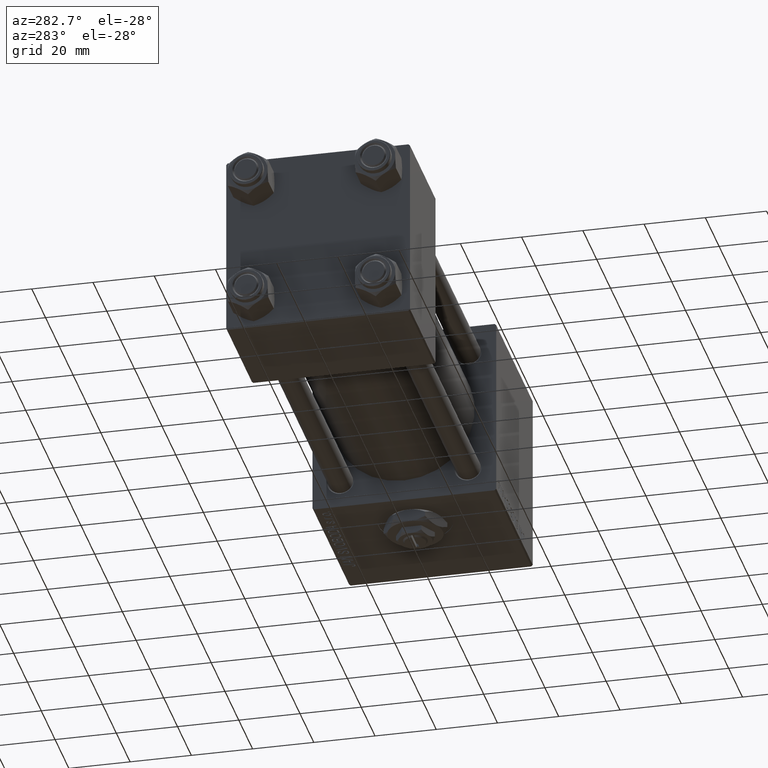
[diagram: clean part render]
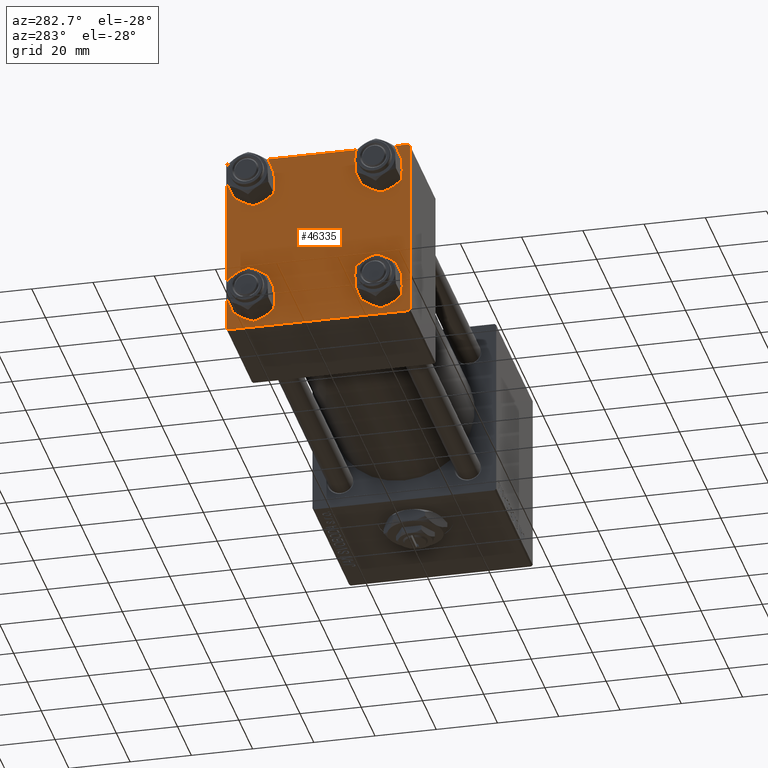
[diagram: same view with one face highlighted and labeled with its STEP entity id]
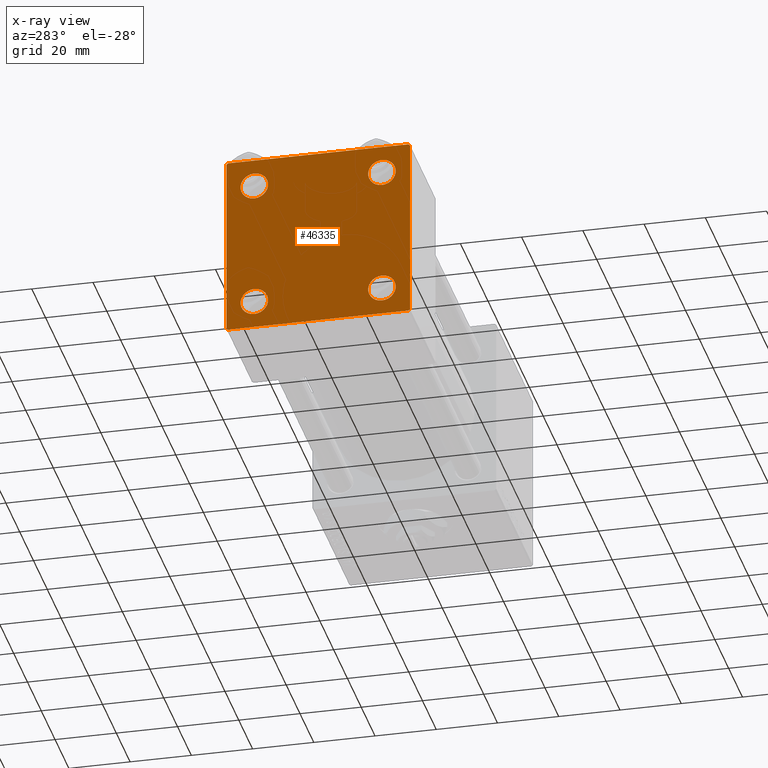
[diagram: x-ray of the same camera — body ghosted, the highlighted face saturated]
A machine part, auxiliary view. The second image highlights one B-rep face of the part: STEP entity #46335.
The next image is the same camera in x-ray: the body ghosted, the highlighted face saturated — about 0% of this face is hidden behind the body in this view.
In plain terms, the highlighted planar face has unit normal (-1, 0, 0).
Its self-contained STEP definition (entity closure, byte-faithful):
#37 = CIRCLE ( 'NONE', #29368, 4.500000000000017764 ) ;
#417 = DIRECTION ( 'NONE',  ( 0.000000000000000000, -0.7071067811865474617, 0.7071067811865474617 ) ) ;
#1184 = VERTEX_POINT ( 'NONE', #28170 ) ;
#1588 = CIRCLE ( 'NONE', #16697, 4.500000000000017764 ) ;
#1604 = EDGE_CURVE ( 'NONE', #35643, #50467, #30187, .T. ) ;
#1827 = VERTEX_POINT ( 'NONE', #10423 ) ;
#2839 = ORIENTED_EDGE ( 'NONE', *, *, #21940, .F. ) ;
#2857 = LINE ( 'NONE', #50364, #40828 ) ;
#3100 = DIRECTION ( 'NONE',  ( -0.000000000000000000, 0.000000000000000000, 1.000000000000000000 ) ) ;
#3378 = CARTESIAN_POINT ( 'NONE',  ( 0.000000000000000000, 20.84999999999999787, 20.85000000000000142 ) ) ;
#4331 = VECTOR ( 'NONE', #46205, 1000.000000000000114 ) ;
#4538 = DIRECTION ( 'NONE',  ( 0.000000000000000000, 0.000000000000000000, -1.000000000000000000 ) ) ;
#5176 = VERTEX_POINT ( 'NONE', #49364 ) ;
#5896 = ORIENTED_EDGE ( 'NONE', *, *, #1604, .T. ) ;
#6841 = DIRECTION ( 'NONE',  ( 1.000000000000000000, -0.000000000000000000, 0.000000000000000000 ) ) ;
#7036 = CARTESIAN_POINT ( 'NONE',  ( 0.000000000000000000, 0.000000000000000000, 0.000000000000000000 ) ) ;
#7045 = LINE ( 'NONE', #27021, #8107 ) ;
#7926 = CARTESIAN_POINT ( 'NONE',  ( 0.000000000000000000, -20.84999999999999076, 20.85000000000000497 ) ) ;
#8107 = VECTOR ( 'NONE', #23064, 1000.000000000000000 ) ;
#8198 = DIRECTION ( 'NONE',  ( 0.000000000000000000, 0.000000000000000000, 1.000000000000000000 ) ) ;
#9786 = ORIENTED_EDGE ( 'NONE', *, *, #46773, .T. ) ;
#10423 = CARTESIAN_POINT ( 'NONE',  ( 0.000000000000000000, -30.00000000000000000, -29.50000000000001776 ) ) ;
#10916 = VERTEX_POINT ( 'NONE', #32713 ) ;
#11246 = FACE_BOUND ( 'NONE', #50742, .T. ) ;
#11400 = ORIENTED_EDGE ( 'NONE', *, *, #17910, .T. ) ;
#11735 = LINE ( 'NONE', #27503, #35302 ) ;
#11858 = LINE ( 'NONE', #19740, #45908 ) ;
#11875 = DIRECTION ( 'NONE',  ( 1.000000000000000000, -0.000000000000000000, 0.000000000000000000 ) ) ;
#12008 = DIRECTION ( 'NONE',  ( 1.000000000000000000, -0.000000000000000000, 0.000000000000000000 ) ) ;
#12552 = CARTESIAN_POINT ( 'NONE',  ( 0.000000000000000000, 20.84999999999999787, -25.35000000000001918 ) ) ;
#12818 = CARTESIAN_POINT ( 'NONE',  ( 0.000000000000000000, -30.00000000000000000, 29.49999999999999289 ) ) ;
#12929 = CARTESIAN_POINT ( 'NONE',  ( 0.000000000000000000, 20.84999999999999787, -16.34999999999998366 ) ) ;
#13088 = ORIENTED_EDGE ( 'NONE', *, *, #18926, .T. ) ;
#13732 = AXIS2_PLACEMENT_3D ( 'NONE', #24598, #41381, #29052 ) ;
#14101 = CARTESIAN_POINT ( 'NONE',  ( 0.000000000000000000, 20.84999999999999787, 25.35000000000001918 ) ) ;
#14714 = CARTESIAN_POINT ( 'NONE',  ( 0.000000000000000000, 20.84999999999999787, 16.34999999999998366 ) ) ;
#14930 = PLANE ( 'NONE',  #49227 ) ;
#16697 = AXIS2_PLACEMENT_3D ( 'NONE', #36307, #28958, #8198 ) ;
#17089 = CIRCLE ( 'NONE', #13732, 4.500000000000017764 ) ;
#17322 = EDGE_CURVE ( 'NONE', #42749, #44568, #1588, .T. ) ;
#17346 = CARTESIAN_POINT ( 'NONE',  ( 0.000000000000000000, -29.49999999999998579, 29.99999999999999289 ) ) ;
#17910 = EDGE_CURVE ( 'NONE', #44568, #42749, #26758, .T. ) ;
#18259 = ORIENTED_EDGE ( 'NONE', *, *, #47216, .T. ) ;
#18280 = AXIS2_PLACEMENT_3D ( 'NONE', #26896, #43164, #23190 ) ;
#18926 = EDGE_CURVE ( 'NONE', #44354, #1827, #47699, .T. ) ;
#19109 = CIRCLE ( 'NONE', #45087, 4.500000000000017764 ) ;
#19137 = EDGE_CURVE ( 'NONE', #51691, #25736, #38561, .T. ) ;
#19148 = CIRCLE ( 'NONE', #18280, 4.500000000000017764 ) ;
#19564 = ORIENTED_EDGE ( 'NONE', *, *, #37425, .T. ) ;
#19740 = CARTESIAN_POINT ( 'NONE',  ( 0.000000000000000000, 29.99999999999999289, -30.00000000000000000 ) ) ;
#21099 = EDGE_CURVE ( 'NONE', #34083, #30402, #37, .T. ) ;
#21505 = EDGE_LOOP ( 'NONE', ( #28808, #46882 ) ) ;
#21940 = EDGE_CURVE ( 'NONE', #25529, #50467, #11735, .T. ) ;
#22558 = DIRECTION ( 'NONE',  ( 1.000000000000000000, -0.000000000000000000, 0.000000000000000000 ) ) ;
#23064 = DIRECTION ( 'NONE',  ( 0.000000000000000000, 0.000000000000000000, -1.000000000000000000 ) ) ;
#23190 = DIRECTION ( 'NONE',  ( 0.000000000000000000, 0.000000000000000000, 1.000000000000000000 ) ) ;
#23475 = ORIENTED_EDGE ( 'NONE', *, *, #46011, .T. ) ;
#24115 = ORIENTED_EDGE ( 'NONE', *, *, #40219, .T. ) ;
#24314 = ORIENTED_EDGE ( 'NONE', *, *, #21099, .T. ) ;
#24598 = CARTESIAN_POINT ( 'NONE',  ( 0.000000000000000000, -20.84999999999999076, -20.85000000000000497 ) ) ;
#25529 = VERTEX_POINT ( 'NONE', #44489 ) ;
#25736 = VERTEX_POINT ( 'NONE', #46568 ) ;
#25961 = AXIS2_PLACEMENT_3D ( 'NONE', #7926, #11875, #40502 ) ;
#26758 = CIRCLE ( 'NONE', #46052, 4.500000000000017764 ) ;
#26896 = CARTESIAN_POINT ( 'NONE',  ( 0.000000000000000000, -20.84999999999999076, 20.85000000000000497 ) ) ;
#27021 = CARTESIAN_POINT ( 'NONE',  ( 0.000000000000000000, 29.99999999999999289, 30.00000000000000000 ) ) ;
#27503 = CARTESIAN_POINT ( 'NONE',  ( 0.000000000000000000, 29.99999999999999289, 30.00000000000000000 ) ) ;
#27580 = CARTESIAN_POINT ( 'NONE',  ( 0.000000000000000000, -20.84999999999999076, -20.85000000000000497 ) ) ;
#27691 = VERTEX_POINT ( 'NONE', #29864 ) ;
#27993 = CARTESIAN_POINT ( 'NONE',  ( 0.000000000000000000, -29.75000000000001066, -29.75000000000001066 ) ) ;
#28170 = CARTESIAN_POINT ( 'NONE',  ( 0.000000000000000000, 29.99999999999999289, -29.50000000000000000 ) ) ;
#28808 = ORIENTED_EDGE ( 'NONE', *, *, #19137, .T. ) ;
#28958 = DIRECTION ( 'NONE',  ( 1.000000000000000000, -0.000000000000000000, 0.000000000000000000 ) ) ;
#29052 = DIRECTION ( 'NONE',  ( 0.000000000000000000, 0.000000000000000000, 1.000000000000000000 ) ) ;
#29335 = DIRECTION ( 'NONE',  ( 0.000000000000000000, 0.000000000000000000, 1.000000000000000000 ) ) ;
#29368 = AXIS2_PLACEMENT_3D ( 'NONE', #48765, #33274, #29335 ) ;
#29864 = CARTESIAN_POINT ( 'NONE',  ( 0.000000000000000000, 29.99999999999999289, 29.50000000000000000 ) ) ;
#30187 = LINE ( 'NONE', #42006, #4331 ) ;
#30402 = VERTEX_POINT ( 'NONE', #12552 ) ;
#31202 = FACE_BOUND ( 'NONE', #36200, .T. ) ;
#31441 = DIRECTION ( 'NONE',  ( 0.000000000000000000, 0.7071067811865474617, -0.7071067811865474617 ) ) ;
#31858 = CARTESIAN_POINT ( 'NONE',  ( 0.000000000000000000, -30.00000000000000000, 29.99999999999999289 ) ) ;
#32340 = VECTOR ( 'NONE', #31441, 1000.000000000000114 ) ;
#32430 = EDGE_CURVE ( 'NONE', #10916, #46905, #17089, .T. ) ;
#32542 = CARTESIAN_POINT ( 'NONE',  ( 0.000000000000000000, -20.84999999999999076, -16.34999999999998721 ) ) ;
#32681 = EDGE_LOOP ( 'NONE', ( #24115, #40204, #23475, #13088, #36068, #5896, #2839, #19564 ) ) ;
#32713 = CARTESIAN_POINT ( 'NONE',  ( 0.000000000000000000, -20.84999999999999076, -25.35000000000002274 ) ) ;
#33274 = DIRECTION ( 'NONE',  ( 1.000000000000000000, -0.000000000000000000, 0.000000000000000000 ) ) ;
#33486 = VECTOR ( 'NONE', #417, 1000.000000000000114 ) ;
#34083 = VERTEX_POINT ( 'NONE', #12929 ) ;
#34626 = FACE_OUTER_BOUND ( 'NONE', #32681, .T. ) ;
#34891 = FACE_BOUND ( 'NONE', #49804, .T. ) ;
#35302 = VECTOR ( 'NONE', #35892, 1000.000000000000000 ) ;
#35620 = ORIENTED_EDGE ( 'NONE', *, *, #17322, .T. ) ;
#35643 = VERTEX_POINT ( 'NONE', #12818 ) ;
#35765 = DIRECTION ( 'NONE',  ( 0.000000000000000000, -1.000000000000000000, -1.156482317317871725E-16 ) ) ;
#35892 = DIRECTION ( 'NONE',  ( 0.000000000000000000, -1.000000000000000000, -1.156482317317871725E-16 ) ) ;
#36068 = ORIENTED_EDGE ( 'NONE', *, *, #43292, .F. ) ;
#36200 = EDGE_LOOP ( 'NONE', ( #9786, #42355 ) ) ;
#36307 = CARTESIAN_POINT ( 'NONE',  ( 0.000000000000000000, 20.84999999999999787, 20.85000000000000142 ) ) ;
#37425 = EDGE_CURVE ( 'NONE', #25529, #27691, #43764, .T. ) ;
#38561 = CIRCLE ( 'NONE', #25961, 4.500000000000017764 ) ;
#38587 = DIRECTION ( 'NONE',  ( 0.000000000000000000, 0.000000000000000000, 1.000000000000000000 ) ) ;
#39088 = FACE_BOUND ( 'NONE', #21505, .T. ) ;
#39254 = AXIS2_PLACEMENT_3D ( 'NONE', #27580, #6841, #46515 ) ;
#39330 = CARTESIAN_POINT ( 'NONE',  ( 0.000000000000000000, 29.74999999999999645, 29.74999999999999645 ) ) ;
#39600 = CARTESIAN_POINT ( 'NONE',  ( 0.000000000000000000, 20.84999999999999787, -20.85000000000000142 ) ) ;
#40094 = EDGE_CURVE ( 'NONE', #1184, #5176, #2857, .T. ) ;
#40204 = ORIENTED_EDGE ( 'NONE', *, *, #40094, .T. ) ;
#40219 = EDGE_CURVE ( 'NONE', #27691, #1184, #7045, .T. ) ;
#40502 = DIRECTION ( 'NONE',  ( 0.000000000000000000, 0.000000000000000000, 1.000000000000000000 ) ) ;
#40828 = VECTOR ( 'NONE', #46715, 999.9999999999998863 ) ;
#41381 = DIRECTION ( 'NONE',  ( 1.000000000000000000, -0.000000000000000000, 0.000000000000000000 ) ) ;
#42006 = CARTESIAN_POINT ( 'NONE',  ( -0.000000000000000000, -29.74999999999999645, 29.74999999999999645 ) ) ;
#42355 = ORIENTED_EDGE ( 'NONE', *, *, #32430, .T. ) ;
#42749 = VERTEX_POINT ( 'NONE', #14101 ) ;
#43164 = DIRECTION ( 'NONE',  ( 1.000000000000000000, -0.000000000000000000, 0.000000000000000000 ) ) ;
#43292 = EDGE_CURVE ( 'NONE', #35643, #1827, #51799, .T. ) ;
#43764 = LINE ( 'NONE', #39330, #32340 ) ;
#44049 = DIRECTION ( 'NONE',  ( 0.000000000000000000, 0.000000000000000000, 1.000000000000000000 ) ) ;
#44354 = VERTEX_POINT ( 'NONE', #48332 ) ;
#44489 = CARTESIAN_POINT ( 'NONE',  ( 0.000000000000000000, 29.49999999999999289, 30.00000000000000000 ) ) ;
#44568 = VERTEX_POINT ( 'NONE', #14714 ) ;
#44980 = VECTOR ( 'NONE', #4538, 1000.000000000000000 ) ;
#45087 = AXIS2_PLACEMENT_3D ( 'NONE', #39600, #12008, #44049 ) ;
#45908 = VECTOR ( 'NONE', #35765, 1000.000000000000000 ) ;
#46011 = EDGE_CURVE ( 'NONE', #5176, #44354, #11858, .T. ) ;
#46052 = AXIS2_PLACEMENT_3D ( 'NONE', #3378, #22558, #38587 ) ;
#46205 = DIRECTION ( 'NONE',  ( -0.000000000000000000, 0.7071067811865474617, 0.7071067811865474617 ) ) ;
#46335 = ADVANCED_FACE ( 'NONE', ( #39088, #31202, #34891, #11246, #34626 ), #14930, .T. ) ;
#46515 = DIRECTION ( 'NONE',  ( 0.000000000000000000, 0.000000000000000000, 1.000000000000000000 ) ) ;
#46568 = CARTESIAN_POINT ( 'NONE',  ( 0.000000000000000000, -20.84999999999999076, 16.34999999999998721 ) ) ;
#46706 = DIRECTION ( 'NONE',  ( -1.000000000000000000, 0.000000000000000000, -0.000000000000000000 ) ) ;
#46715 = DIRECTION ( 'NONE',  ( -0.000000000000000000, -0.7071067811865574537, -0.7071067811865376918 ) ) ;
#46773 = EDGE_CURVE ( 'NONE', #46905, #10916, #49263, .T. ) ;
#46882 = ORIENTED_EDGE ( 'NONE', *, *, #47955, .T. ) ;
#46905 = VERTEX_POINT ( 'NONE', #32542 ) ;
#47216 = EDGE_CURVE ( 'NONE', #30402, #34083, #19109, .T. ) ;
#47655 = CARTESIAN_POINT ( 'NONE',  ( 0.000000000000000000, -20.84999999999999076, 25.35000000000002274 ) ) ;
#47699 = LINE ( 'NONE', #27993, #33486 ) ;
#47955 = EDGE_CURVE ( 'NONE', #25736, #51691, #19148, .T. ) ;
#48332 = CARTESIAN_POINT ( 'NONE',  ( 0.000000000000000000, -29.50000000000000000, -30.00000000000000711 ) ) ;
#48765 = CARTESIAN_POINT ( 'NONE',  ( 0.000000000000000000, 20.84999999999999787, -20.85000000000000142 ) ) ;
#49227 = AXIS2_PLACEMENT_3D ( 'NONE', #7036, #46706, #3100 ) ;
#49263 = CIRCLE ( 'NONE', #39254, 4.500000000000017764 ) ;
#49364 = CARTESIAN_POINT ( 'NONE',  ( 0.000000000000000000, 29.49999999999997868, -30.00000000000000000 ) ) ;
#49804 = EDGE_LOOP ( 'NONE', ( #24314, #18259 ) ) ;
#50364 = CARTESIAN_POINT ( 'NONE',  ( 0.000000000000000000, 29.74999999999957723, -29.75000000000040501 ) ) ;
#50467 = VERTEX_POINT ( 'NONE', #17346 ) ;
#50742 = EDGE_LOOP ( 'NONE', ( #35620, #11400 ) ) ;
#51691 = VERTEX_POINT ( 'NONE', #47655 ) ;
#51799 = LINE ( 'NONE', #31858, #44980 ) ;